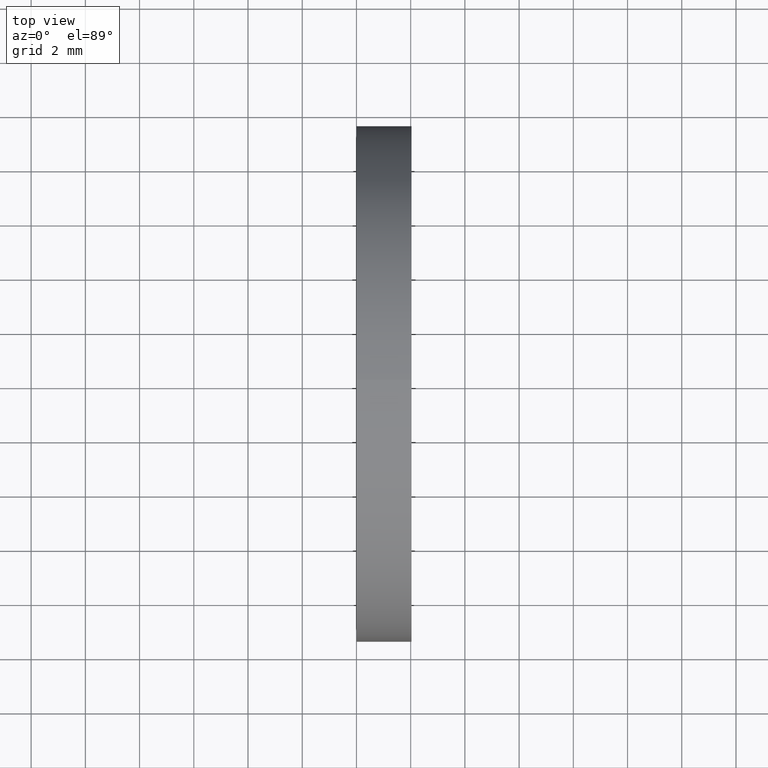
[diagram: clean part render]
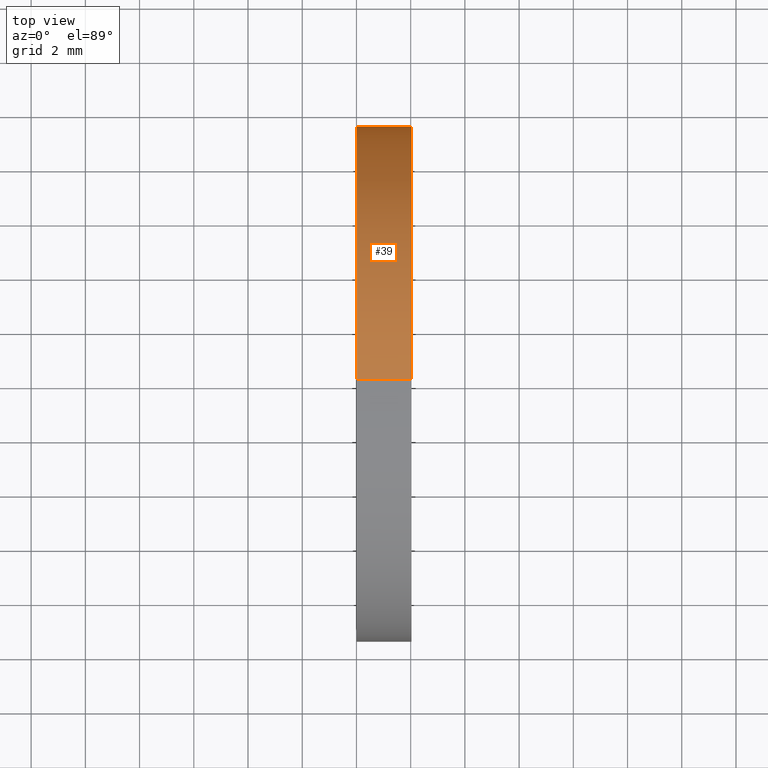
[diagram: same view with one face highlighted and labeled with its STEP entity id]
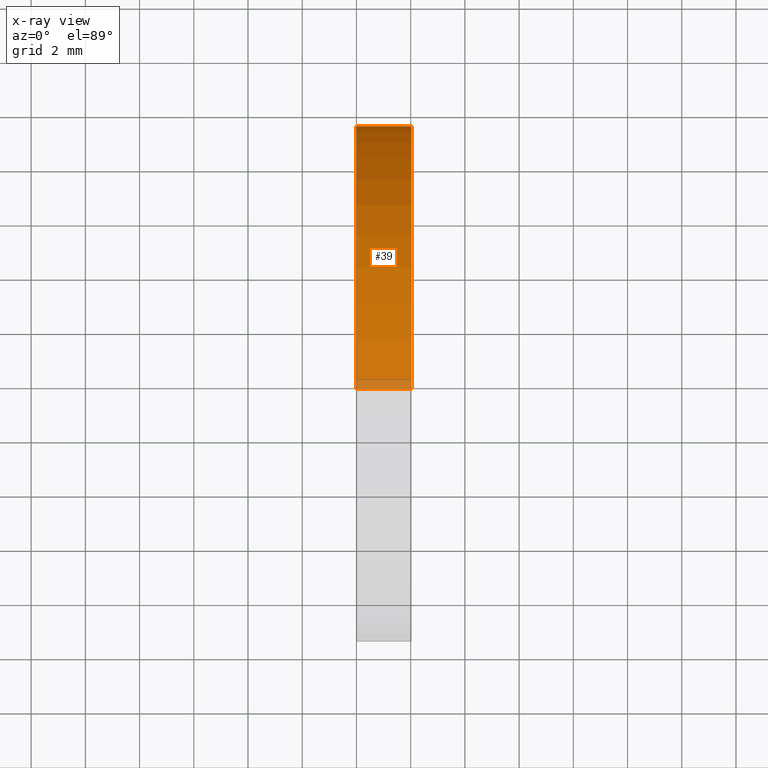
[diagram: x-ray of the same camera — body ghosted, the highlighted face saturated]
A machine part, top view. The second image highlights one B-rep face of the part: STEP entity #39.
The next image is the same camera in x-ray: the body ghosted, the highlighted face saturated — about 3% of this face is hidden behind the body in this view.
In plain terms, the highlighted cylindrical surface (partial cylindrical patch) has radius 9.525 mm, axis along (-1, 0, 0).
Its self-contained STEP definition (entity closure, byte-faithful):
#35 = VERTEX_POINT ( 'NONE', #97 ) ;
#36 = ORIENTED_EDGE ( 'NONE', *, *, #37, .T. ) ;
#37 = EDGE_CURVE ( 'NONE', #58, #59, #95, .T. ) ;
#39 = ADVANCED_FACE ( 'NONE', ( #96 ), #101, .T. ) ;
#40 = EDGE_LOOP ( 'NONE', ( #36, #67, #61, #69 ) ) ;
#58 = VERTEX_POINT ( 'NONE', #138 ) ;
#59 = VERTEX_POINT ( 'NONE', #160 ) ;
#60 = EDGE_CURVE ( 'NONE', #59, #35, #159, .T. ) ;
#61 = ORIENTED_EDGE ( 'NONE', *, *, #62, .F. ) ;
#62 = EDGE_CURVE ( 'NONE', #68, #35, #154, .T. ) ;
#67 = ORIENTED_EDGE ( 'NONE', *, *, #60, .T. ) ;
#68 = VERTEX_POINT ( 'NONE', #171 ) ;
#69 = ORIENTED_EDGE ( 'NONE', *, *, #70, .F. ) ;
#70 = EDGE_CURVE ( 'NONE', #58, #68, #173, .T. ) ;
#91 = DIRECTION ( 'NONE',  ( 0.0000000000000000000, 0.0000000000000000000, 1.000000000000000000 ) ) ;
#92 = DIRECTION ( 'NONE',  ( -1.000000000000000000, 0.0000000000000000000, 0.0000000000000000000 ) ) ;
#93 = AXIS2_PLACEMENT_3D ( 'NONE', #114, #92, #91 ) ;
#94 = AXIS2_PLACEMENT_3D ( 'NONE', #104, #103, #102 ) ;
#95 = CIRCLE ( 'NONE', #94, 0.3750000000000000600 ) ;
#96 = FACE_OUTER_BOUND ( 'NONE', #40, .T. ) ;
#97 = CARTESIAN_POINT ( 'NONE',  ( 0.0000000000000000000, 4.592425496802575500E-017, -0.3750000000000000600 ) ) ;
#101 = CYLINDRICAL_SURFACE ( 'NONE', #93, 0.3750000000000000600 ) ;
#102 = DIRECTION ( 'NONE',  ( 0.0000000000000000000, 0.0000000000000000000, 1.000000000000000000 ) ) ;
#103 = DIRECTION ( 'NONE',  ( -1.000000000000000000, 0.0000000000000000000, 0.0000000000000000000 ) ) ;
#104 = CARTESIAN_POINT ( 'NONE',  ( 0.07999999999999996000, 0.0000000000000000000, 0.0000000000000000000 ) ) ;
#114 = CARTESIAN_POINT ( 'NONE',  ( -1.721125226614714300, 0.0000000000000000000, 0.0000000000000000000 ) ) ;
#138 = CARTESIAN_POINT ( 'NONE',  ( 0.07999999999999996000, 0.0000000000000000000, 0.3750000000000000600 ) ) ;
#148 = DIRECTION ( 'NONE',  ( 0.0000000000000000000, 0.0000000000000000000, 1.000000000000000000 ) ) ;
#149 = DIRECTION ( 'NONE',  ( -1.000000000000000000, 0.0000000000000000000, 0.0000000000000000000 ) ) ;
#152 = CARTESIAN_POINT ( 'NONE',  ( 0.0000000000000000000, 0.0000000000000000000, 0.0000000000000000000 ) ) ;
#153 = AXIS2_PLACEMENT_3D ( 'NONE', #152, #149, #148 ) ;
#154 = CIRCLE ( 'NONE', #153, 0.3750000000000000600 ) ;
#155 = DIRECTION ( 'NONE',  ( -1.000000000000000000, 0.0000000000000000000, 0.0000000000000000000 ) ) ;
#156 = VECTOR ( 'NONE', #155, 39.37007874015748100 ) ;
#157 = CARTESIAN_POINT ( 'NONE',  ( -1.721125226614714300, 4.592425496802575500E-017, -0.3750000000000000600 ) ) ;
#159 = LINE ( 'NONE', #157, #156 ) ;
#160 = CARTESIAN_POINT ( 'NONE',  ( 0.07999999999999996000, 4.592425496802575500E-017, -0.3750000000000000600 ) ) ;
#169 = DIRECTION ( 'NONE',  ( -1.000000000000000000, 0.0000000000000000000, 0.0000000000000000000 ) ) ;
#170 = VECTOR ( 'NONE', #169, 39.37007874015748100 ) ;
#171 = CARTESIAN_POINT ( 'NONE',  ( 0.0000000000000000000, 0.0000000000000000000, 0.3750000000000000600 ) ) ;
#172 = CARTESIAN_POINT ( 'NONE',  ( -1.721125226614714300, 0.0000000000000000000, 0.3750000000000000600 ) ) ;
#173 = LINE ( 'NONE', #172, #170 ) ;